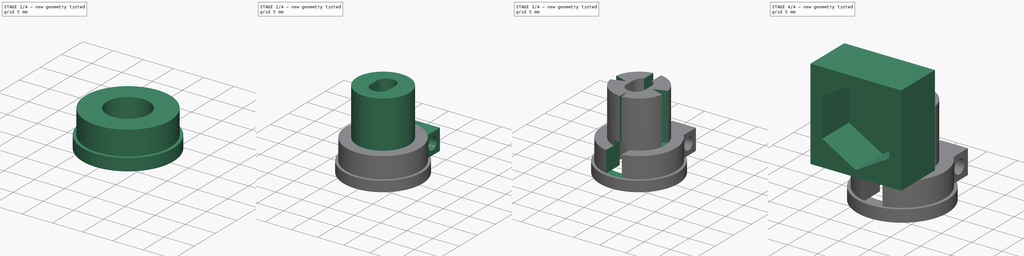
[diagram: build sequence overview — one tinted view per stage of 4, left to right]
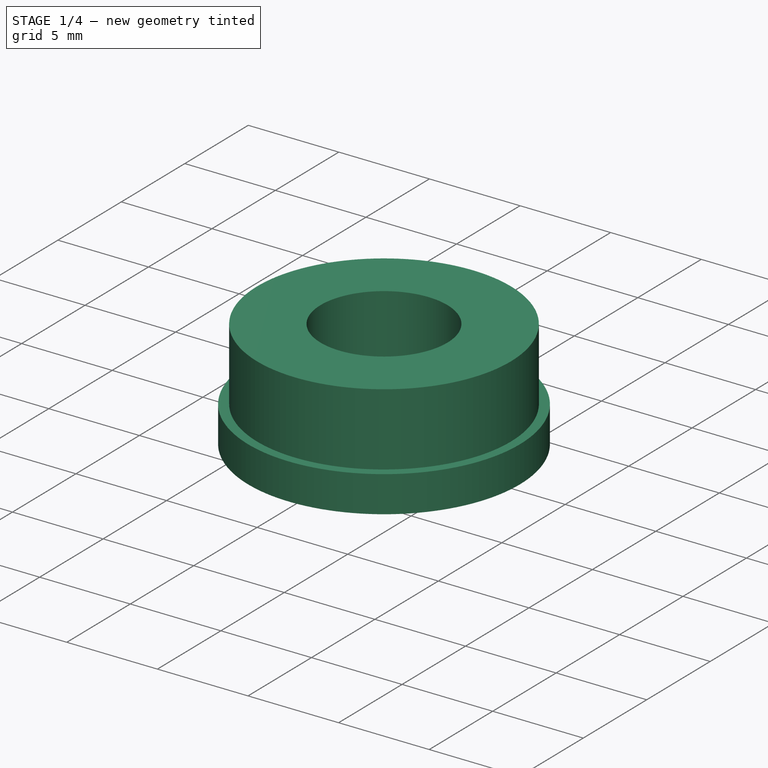
[diagram: stage 1 of 4 — iso view after this stage's code; geometry added in this stage tinted green]
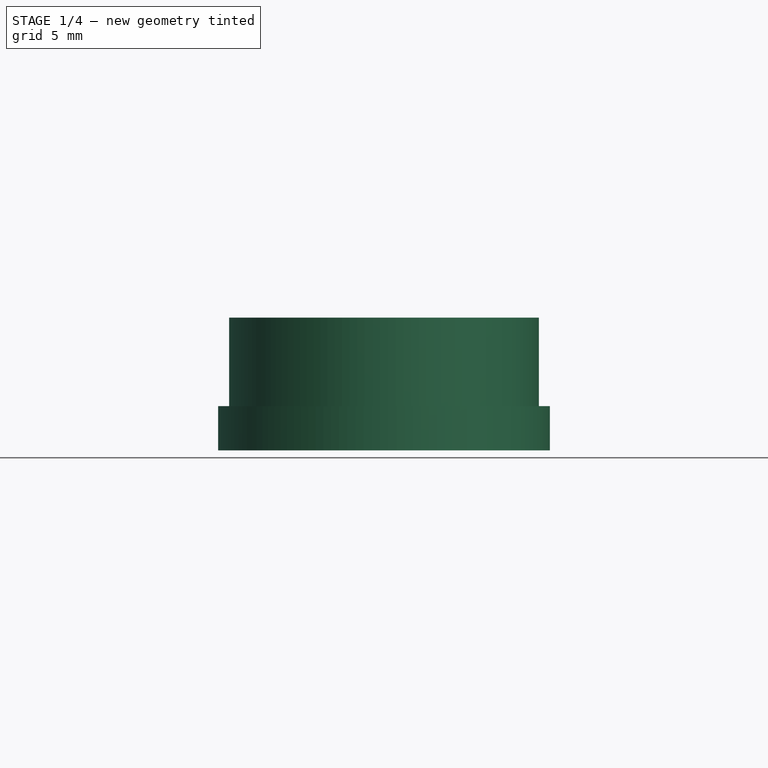
[diagram: stage 1 of 4 — front view after this stage's code; geometry added in this stage tinted green]
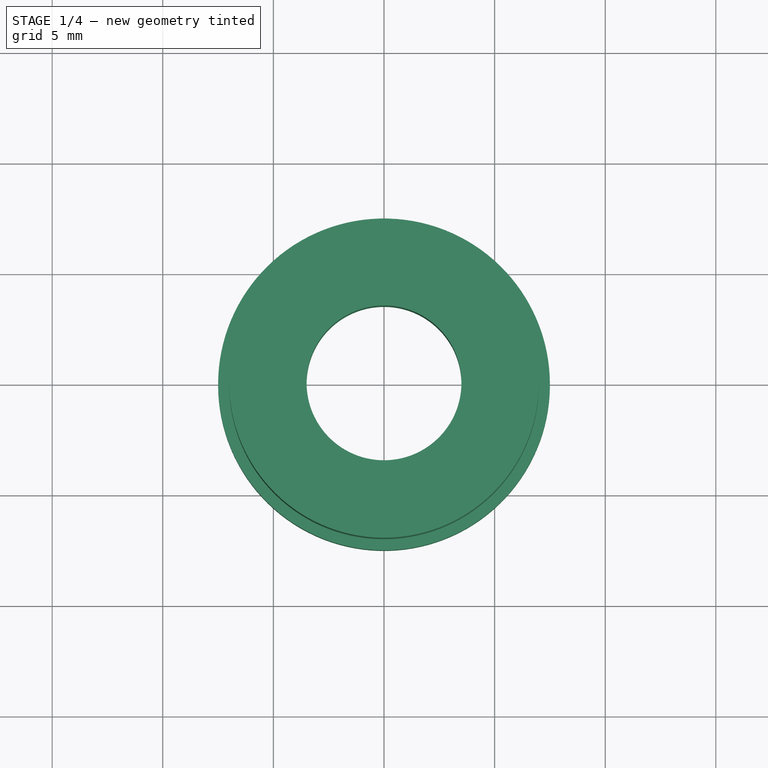
[diagram: stage 1 of 4 — top view after this stage's code; geometry added in this stage tinted green]
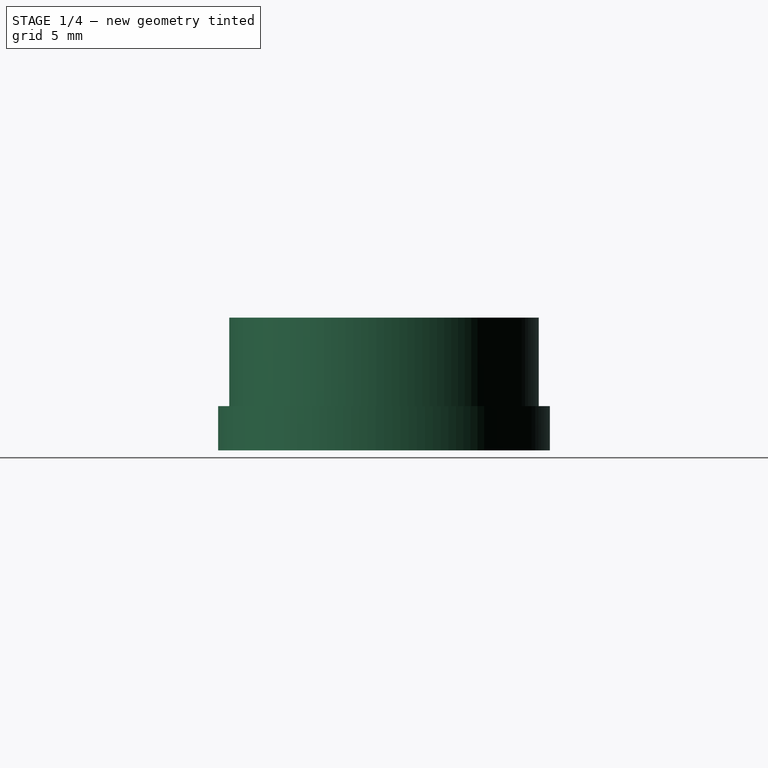
[diagram: stage 1 of 4 — right view after this stage's code; geometry added in this stage tinted green]
FCSTD DOCUMENT  (FreeCAD 0.19R24344 (Git))
Label: Case_Cable-Camera
License: All rights reserved
LicenseURL: http://en.wikipedia.org/wiki/All_rights_reserved
objects: Sketcher::SketchObject×10, PartDesign::Pad×5, PartDesign::Pocket×5, PartDesign::Body×1
note: 31 computed .brp shape members not serialized (recipe doc carries the construction recipe); baked Part::Feature solids carry a one-line shape summary decoded from their .brp

FEATURE [Sketcher::SketchObject] Sketch
  FullyConstrained = false
  MapMode = 5
  Support = -> [XY_Plane]
  sketch-geometry (2):
    g0: Circle CenterX=0 CenterY=0 CenterZ=0 NormalX=0 NormalY=0 NormalZ=1 AngleXU=0 Radius=7.5
    g1: Circle CenterX=0 CenterY=0 CenterZ=0 NormalX=0 NormalY=0 NormalZ=1 AngleXU=0 Radius=5.5
  constraints (4):
    c: Coincident(g0,g-1)
    c: Radius(g0) = 7.5
    c: Coincident(g1,g0)
    c: Radius(g1) = 5.5
FEATURE [PartDesign::Pad] Pad
  AllowMultiFace = false
  Direction = (1,1,1)
  Length = 2
  Length2 = 100
  Profile = -> Sketch
  Type = 0
FEATURE [Sketcher::SketchObject] Sketch001
  FullyConstrained = false
  MapMode = 5
  Placement = pos=(0,0,2) rot=(0,0,1;0rad)
  Support = -> [Pad]
  sketch-geometry (2):
    g0: Circle CenterX=0 CenterY=0 CenterZ=0 NormalX=0 NormalY=0 NormalZ=1 AngleXU=0 Radius=7
    g1: Circle CenterX=0 CenterY=0 CenterZ=0 NormalX=0 NormalY=0 NormalZ=1 AngleXU=0 Radius=3.5
  constraints (4):
    c: Coincident(g0,g-1)
    c: Radius(g0) = 7
    c: Radius(g1) = 3.5
    c: Coincident(g1,g0)
FEATURE [PartDesign::Pad] Pad001
  AllowMultiFace = false
  BaseFeature = -> Pad
  Direction = (1,1,1)
  Length = 4
  Length2 = 100
  Profile = -> Sketch001
  Type = 0
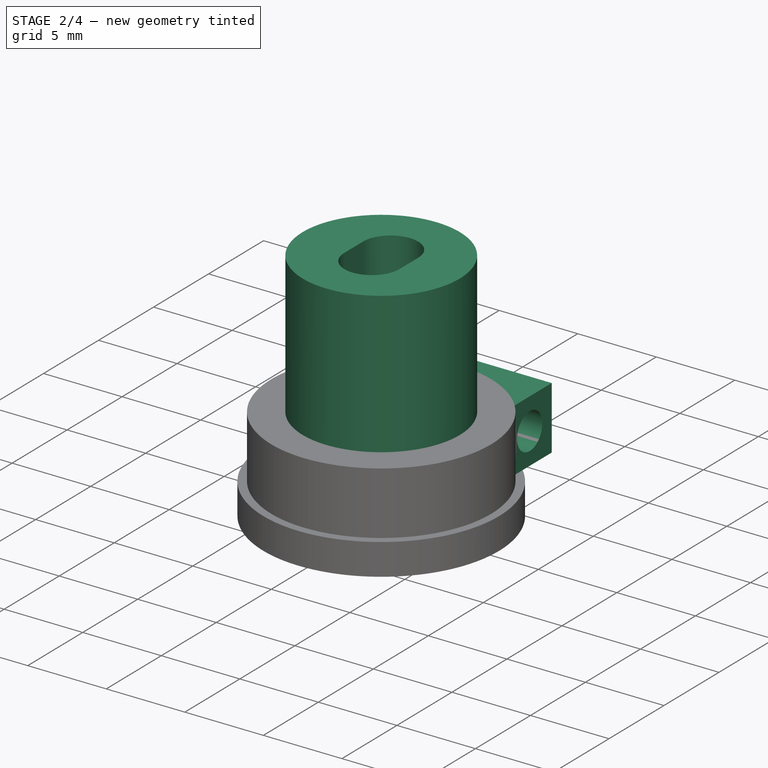
[diagram: stage 2 of 4 — iso view after this stage's code; geometry added in this stage tinted green]
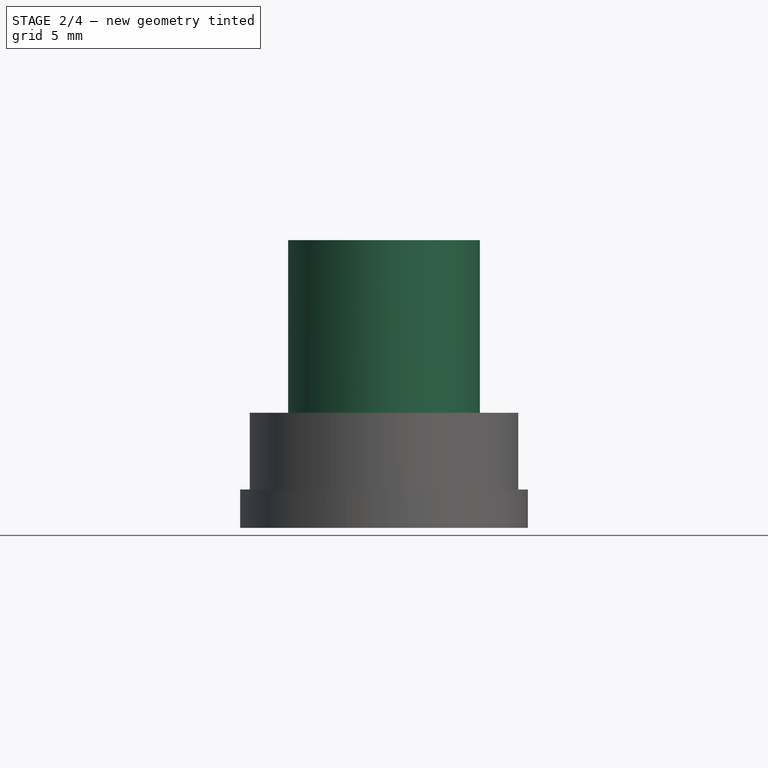
[diagram: stage 2 of 4 — front view after this stage's code; geometry added in this stage tinted green]
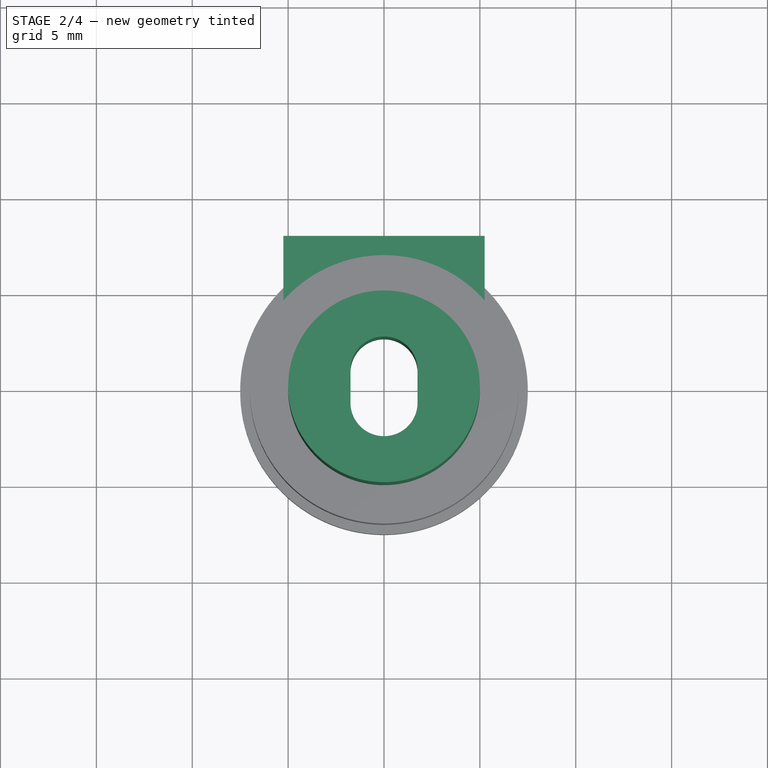
[diagram: stage 2 of 4 — top view after this stage's code; geometry added in this stage tinted green]
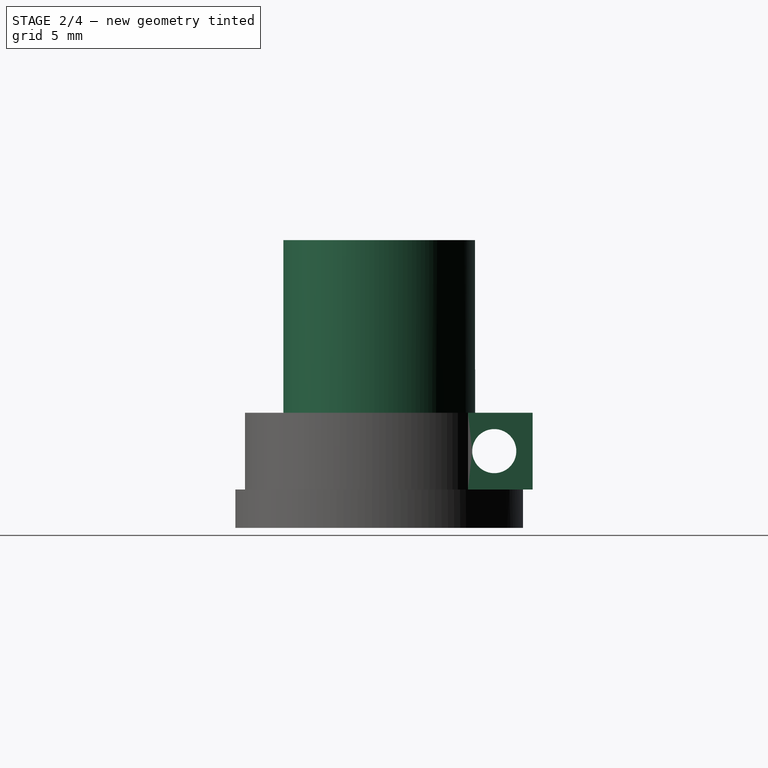
[diagram: stage 2 of 4 — right view after this stage's code; geometry added in this stage tinted green]
FEATURE [Sketcher::SketchObject] Sketch002
  FullyConstrained = false
  MapMode = 5
  Placement = pos=(0,0,6) rot=(0,0,1;0rad)
  Support = -> [Pad001]
  sketch-geometry (7):
    g0: ArcOfCircle CenterX=0 CenterY=0.85 CenterZ=0 NormalX=0 NormalY=0 NormalZ=1 AngleXU=0 Radius=1.75 StartAngle=2e-16 EndAngle=3.14159
    g1: ArcOfCircle CenterX=0 CenterY=-0.85 CenterZ=0 NormalX=0 NormalY=0 NormalZ=1 AngleXU=0 Radius=1.75 StartAngle=3.14159 EndAngle=6.28319
    g2: LineSegment StartX=-1.75 StartY=0.85 StartZ=0 EndX=-1.75 EndY=-0.85 EndZ=0
    g3: LineSegment StartX=1.75 StartY=0.85 StartZ=0 EndX=1.75 EndY=-0.85 EndZ=0
    g4: LineSegment StartX=-1 StartY=2.6 StartZ=0 EndX=1 EndY=2.6 EndZ=0
    g5: LineSegment StartX=-1 StartY=-2.6 StartZ=0 EndX=1 EndY=-2.6 EndZ=0
    g6: Circle CenterX=0 CenterY=0 CenterZ=0 NormalX=0 NormalY=0 NormalZ=1 AngleXU=0 Radius=5
  constraints (17):
    c: Tangent(g0,g3) = 1.5708
    c: Tangent(g0,g2) = -1.5708
    c: Tangent(g2,g1) = -1.5708
    c: Tangent(g3,g1) = 1.5708
    c: Vertical(g2)
    c: DistanceX(g0,g0) = 3.5
    c: Symmetric(g0,g1,g-1)
    c: Tangent(g4,g0)
    c: Tangent(g5,g1)
    c: DistanceY(g5,g4) = 5.2
    c: PointOnObject(g0,g-2)
    c: DistanceX(g4,g4) = 2
    c: DistanceX(g5,g5) = 2
    c: Symmetric(g4,g4,g-2)
    c: Symmetric(g5,g5,g-2)
    c: Coincident(g6,g-1)
    c: Radius(g6) = 5
FEATURE [PartDesign::Pad] Pad002
  AllowMultiFace = false
  BaseFeature = -> Pad001
  Direction = (1,1,1)
  Length = 9
  Length2 = 100
  Profile = -> Sketch002
  Type = 0
FEATURE [Sketcher::SketchObject] Sketch003
  FullyConstrained = false
  MapMode = 5
  Placement = pos=(0,0,2) rot=(0,0,1;0rad)
  Support = -> [Pad002]
  sketch-geometry (4):
    g0: LineSegment StartX=-5.25 StartY=8 StartZ=0 EndX=5.25 EndY=8 EndZ=0
    g1: LineSegment StartX=5.25 StartY=8 StartZ=0 EndX=5.25 EndY=4 EndZ=0
    g2: LineSegment StartX=5.25 StartY=4 StartZ=0 EndX=-5.25 EndY=4 EndZ=0
    g3: LineSegment StartX=-5.25 StartY=4 StartZ=0 EndX=-5.25 EndY=8 EndZ=0
  constraints (11):
    c: Coincident(g0,g1)
    c: Coincident(g1,g2)
    c: Coincident(g2,g3)
    c: Coincident(g3,g0)
    c: Horizontal(g2)
    c: Vertical(g1)
    c: Vertical(g3)
    c: Symmetric(g0,g0,g-2)
    c: DistanceY(g-1,g0) = 8
    c: Distance(g3) = 4
    c: Distance(g0) = 10.5
FEATURE [PartDesign::Pad] Pad003  label="ScrewBlock"
  AllowMultiFace = false
  BaseFeature = -> Pad002
  Direction = (1,1,1)
  Length = 4
  Length2 = 100
  Profile = -> Sketch003
  Type = 0
FEATURE [Sketcher::SketchObject] Sketch004
  ExternalGeometry = -> [Pad003]
  FullyConstrained = false
  MapMode = 5
  Placement = pos=(-5.25,0,0) rot=(0.57735,-0.57735,-0.57735;2.0944rad)
  Support = -> [Pad003]
  sketch-geometry (1):
    g0: Circle CenterX=-6 CenterY=4 CenterZ=0 NormalX=0 NormalY=0 NormalZ=1 AngleXU=0 Radius=1.15
  constraints (3):
    c: DistanceY(g0,g-3) = 2
    c: DistanceX(g-3,g0) = 2
    c: Radius(g0) = 1.15
FEATURE [PartDesign::Pocket] Pocket  label="ScrewHole"
  AllowMultiFace = false
  BaseFeature = -> Pad003
  Length = 5
  Length2 = 100
  Profile = -> Sketch004
  Type = 1
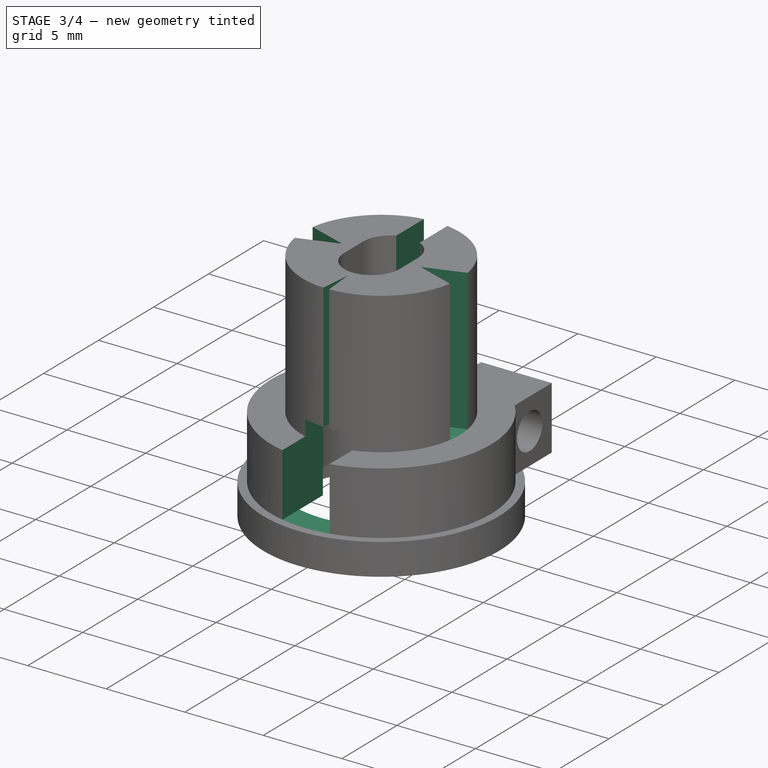
[diagram: stage 3 of 4 — iso view after this stage's code; geometry added in this stage tinted green]
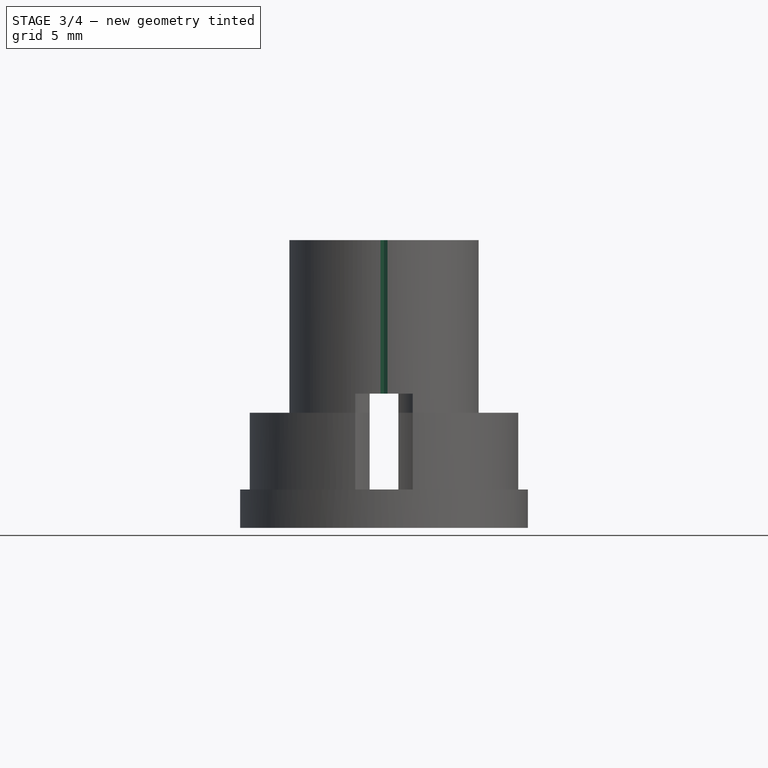
[diagram: stage 3 of 4 — front view after this stage's code; geometry added in this stage tinted green]
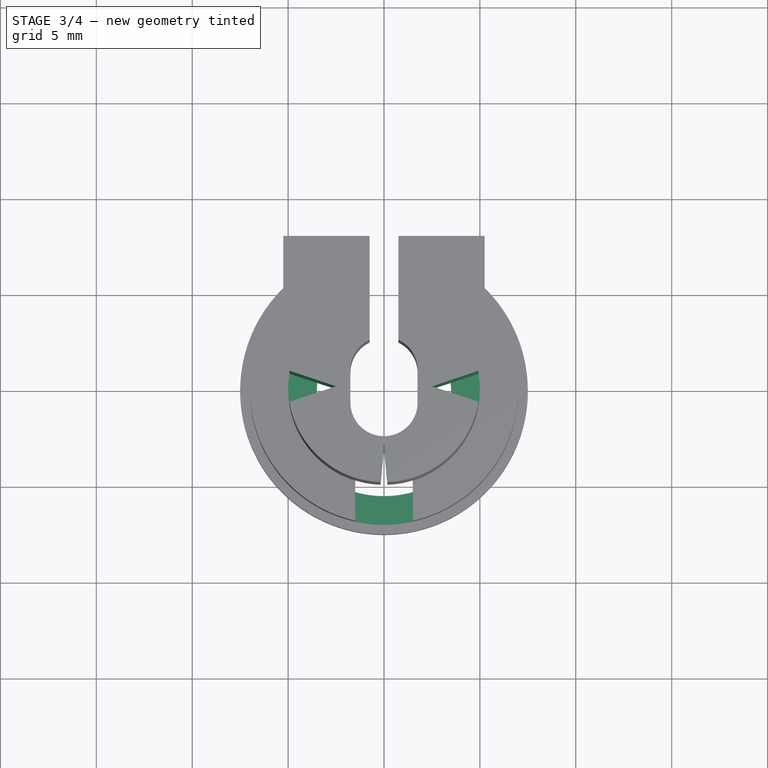
[diagram: stage 3 of 4 — top view after this stage's code; geometry added in this stage tinted green]
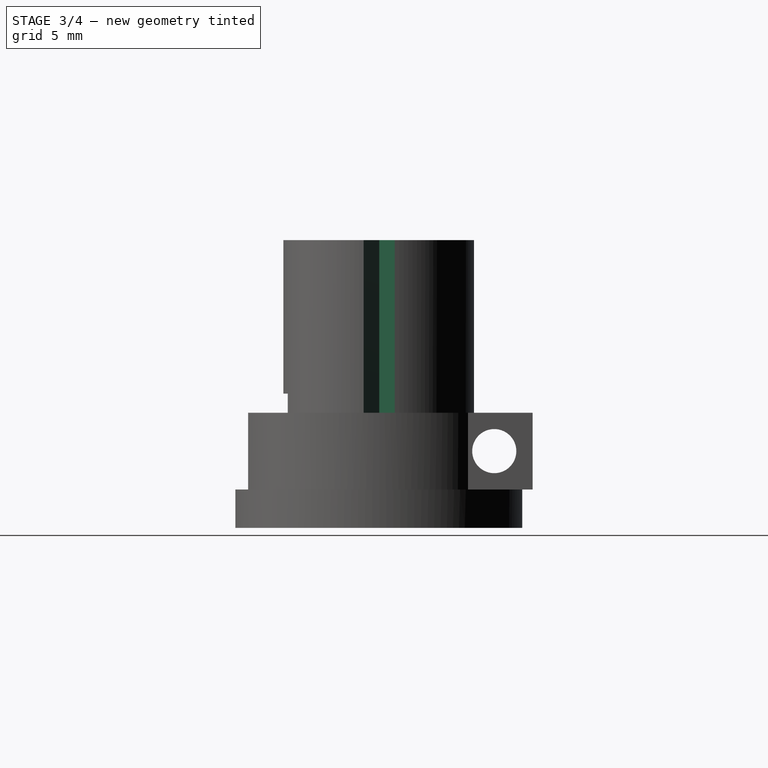
[diagram: stage 3 of 4 — right view after this stage's code; geometry added in this stage tinted green]
FEATURE [Sketcher::SketchObject] Sketch005
  ExternalGeometry = -> [Pocket]
  FullyConstrained = false
  MapMode = 5
  Placement = pos=(0,0,15) rot=(0,0,1;0rad)
  Support = -> [Pocket]
  sketch-geometry (13):
    g0: LineSegment StartX=0.5 StartY=8.5 StartZ=0 EndX=1e-16 EndY=3 EndZ=0
    g1: LineSegment StartX=1e-16 StartY=3 StartZ=0 EndX=-0.5 EndY=8.5 EndZ=0
    g2: LineSegment StartX=-0.5 StartY=8.5 StartZ=0 EndX=-8.5 EndY=2 EndZ=0
    g3: LineSegment StartX=-8.5 StartY=2 StartZ=0 EndX=-2.5 EndY=0 EndZ=0
    g4: LineSegment StartX=-2.5 StartY=0 StartZ=0 EndX=-8.5 EndY=-2 EndZ=0
    g5: LineSegment StartX=-8.5 StartY=-2 StartZ=0 EndX=-0.5 EndY=-8.5 EndZ=0
    g6: LineSegment StartX=-0.5 StartY=-8.5 StartZ=0 EndX=-1e-16 EndY=-3 EndZ=0
    g7: LineSegment StartX=-1e-16 StartY=-3 StartZ=0 EndX=0.5 EndY=-8.5 EndZ=0
    g8: LineSegment StartX=0.5 StartY=-8.5 StartZ=0 EndX=8.5 EndY=-2 EndZ=0
    g9: LineSegment StartX=8.5 StartY=-2 StartZ=0 EndX=2.5 EndY=0 EndZ=0
    g10: LineSegment StartX=2.5 StartY=0 StartZ=0 EndX=8.5 EndY=2 EndZ=0
    g11: LineSegment StartX=8.5 StartY=2 StartZ=0 EndX=0.5 EndY=8.5 EndZ=0
    g12: Circle CenterX=0 CenterY=0 CenterZ=0 NormalX=0 NormalY=0 NormalZ=1 AngleXU=0 Radius=9
  constraints (30):
    c: PointOnObject(g0,g-2)
    c: Coincident(g0,g1)
    c: Coincident(g1,g2)
    c: Coincident(g2,g3)
    c: PointOnObject(g3,g-1)
    c: Coincident(g3,g4)
    c: Coincident(g4,g5)
    c: Coincident(g5,g6)
    c: Coincident(g6,g7)
    c: Coincident(g7,g8)
    c: Coincident(g8,g9)
    c: Coincident(g9,g10)
    c: Coincident(g10,g11)
    c: Coincident(g11,g0)
    c: Symmetric(g9,g3,g-2)
    c: Symmetric(g0,g6,g-1)
    c: Symmetric(g0,g7,g-1)
    c: Symmetric(g1,g5,g-1)
    c: Symmetric(g2,g10,g-2)
    c: Symmetric(g8,g4,g-2)
    c: Symmetric(g4,g2,g-1)
    c: Symmetric(g5,g7,g-2)
    c: DistanceY(g-1,g0) = 3
    c: Coincident(g12,g-1)
    c: Radius(g12) = 9
    c: DistanceY(g5,g-1) = 8.5
    c: DistanceX(g4,g-1) = 8.5
    c: DistanceX(g5,g-1) = 0.5
    c: DistanceY(g4,g-1) = 2
    c: DistanceX(g-1,g9) = 2.5
FEATURE [PartDesign::Pocket] Pocket001
  AllowMultiFace = false
  BaseFeature = -> Pocket
  Length = 9
  Length2 = 100
  Profile = -> Sketch005
  Type = 0
FEATURE [Sketcher::SketchObject] Sketch006
  FullyConstrained = false
  MapMode = 5
  Placement = pos=(0,0,0) rot=(1,0,0;3.14159rad)
  Support = -> [Pocket001]
  sketch-geometry (4):
    g0: LineSegment StartX=-0.75 StartY=0 StartZ=0 EndX=0.75 EndY=0 EndZ=0
    g1: LineSegment StartX=0.75 StartY=0 StartZ=0 EndX=0.75 EndY=-9 EndZ=0
    g2: LineSegment StartX=0.75 StartY=-9 StartZ=0 EndX=-0.75 EndY=-9 EndZ=0
    g3: LineSegment StartX=-0.75 StartY=-9 StartZ=0 EndX=-0.75 EndY=0 EndZ=0
  constraints (11):
    c: Coincident(g0,g1)
    c: Coincident(g1,g2)
    c: Coincident(g2,g3)
    c: Coincident(g3,g0)
    c: Horizontal(g2)
    c: Vertical(g1)
    c: Vertical(g3)
    c: PointOnObject(g0,g-1)
    c: Symmetric(g0,g0,g-2)
    c: Distance(g1) = 9
    c: Distance(g2) = 1.5
FEATURE [PartDesign::Pocket] Pocket002
  AllowMultiFace = false
  BaseFeature = -> Pocket001
  Length = 5
  Length2 = 100
  Profile = -> Sketch006
  Type = 1
FEATURE [Sketcher::SketchObject] Sketch007
  FullyConstrained = false
  MapMode = 5
  Placement = pos=(0,0,2) rot=(1,0,0;3.14159rad)
  Support = -> [Pocket002]
  sketch-geometry (4):
    g0: LineSegment StartX=-1.5 StartY=0 StartZ=0 EndX=1.5 EndY=0 EndZ=0
    g1: LineSegment StartX=1.5 StartY=0 StartZ=0 EndX=1.5 EndY=9 EndZ=0
    g2: LineSegment StartX=1.5 StartY=9 StartZ=0 EndX=-1.5 EndY=9 EndZ=0
    g3: LineSegment StartX=-1.5 StartY=9 StartZ=0 EndX=-1.5 EndY=0 EndZ=0
  constraints (11):
    c: Coincident(g0,g1)
    c: Coincident(g1,g2)
    c: Coincident(g2,g3)
    c: Coincident(g3,g0)
    c: Horizontal(g2)
    c: Vertical(g1)
    c: Vertical(g3)
    c: PointOnObject(g0,g-1)
    c: Symmetric(g0,g0,g-2)
    c: Distance(g3) = 9
    c: Distance(g0) = 3
FEATURE [PartDesign::Pocket] Pocket003
  AllowMultiFace = false
  BaseFeature = -> Pocket002
  Length = 5
  Length2 = 100
  Profile = -> Sketch007
  Type = 0
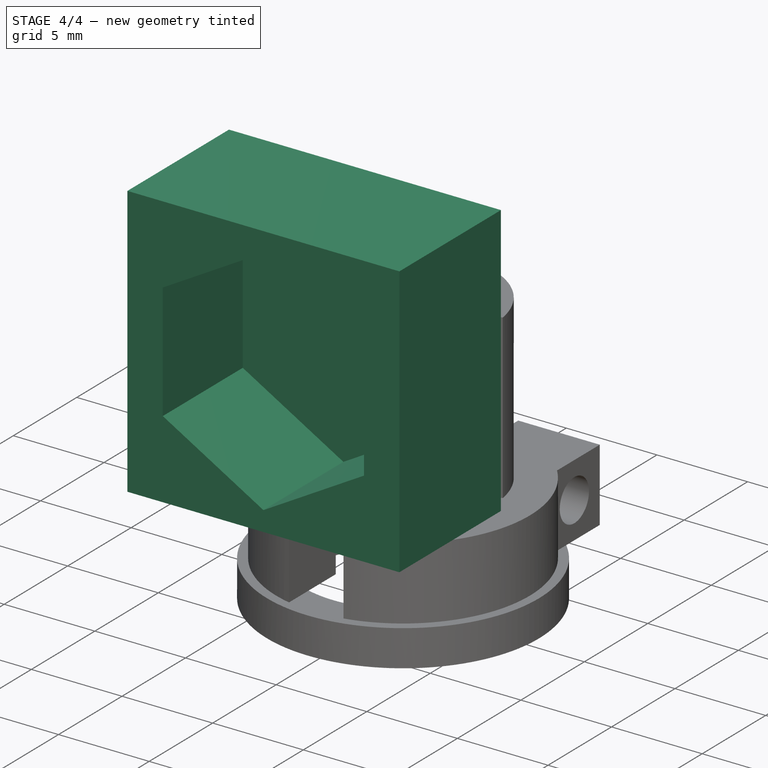
[diagram: stage 4 of 4 — iso view after this stage's code; geometry added in this stage tinted green]
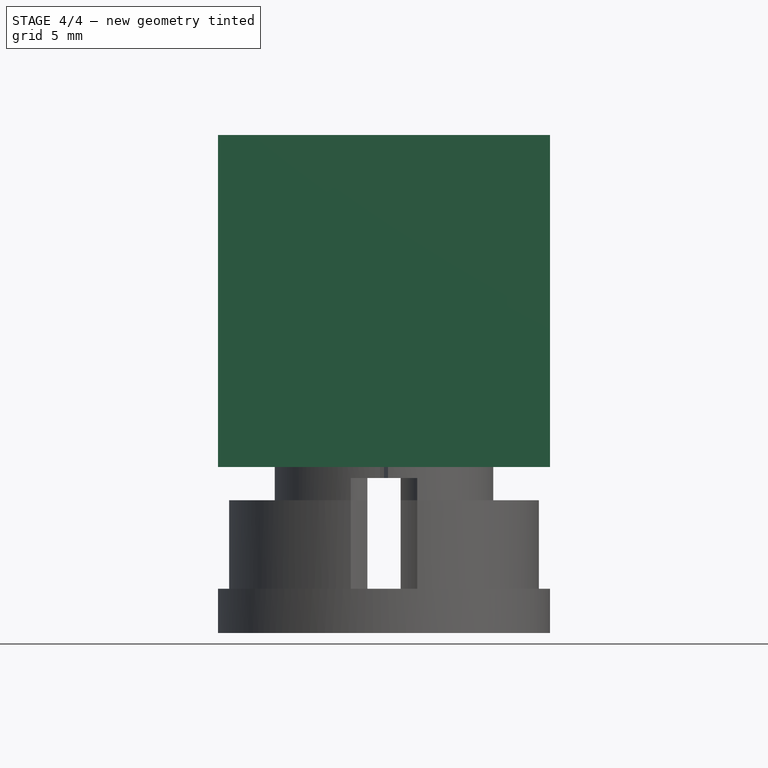
[diagram: stage 4 of 4 — front view after this stage's code; geometry added in this stage tinted green]
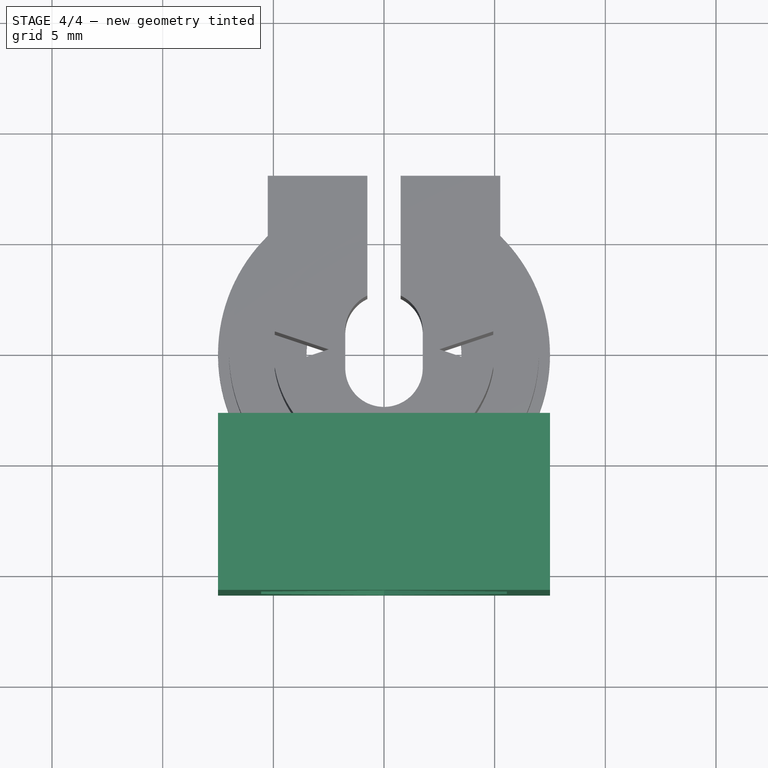
[diagram: stage 4 of 4 — top view after this stage's code; geometry added in this stage tinted green]
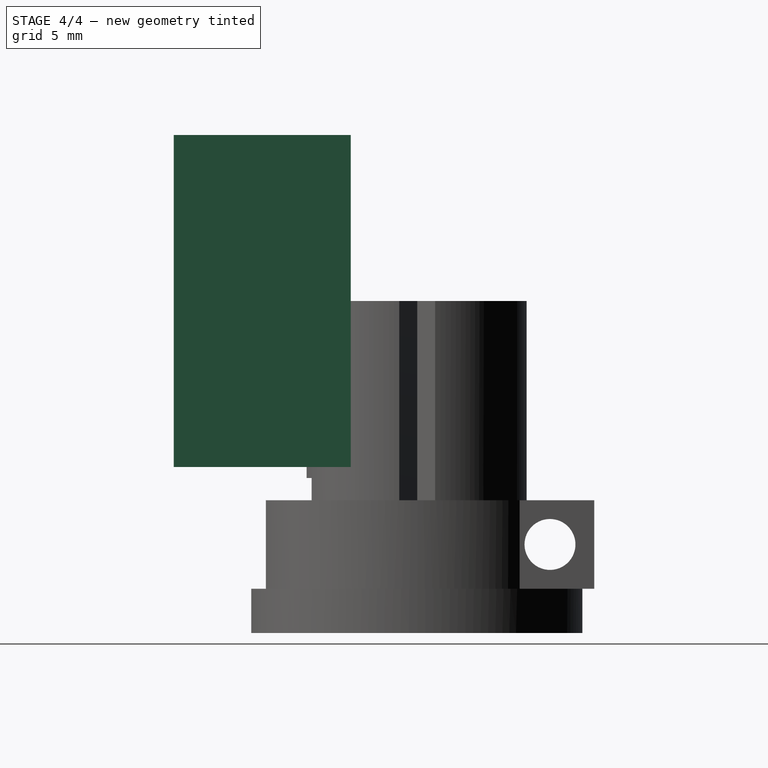
[diagram: stage 4 of 4 — right view after this stage's code; geometry added in this stage tinted green]
FEATURE [Sketcher::SketchObject] Sketch008
  FullyConstrained = false
  MapMode = 5
  Placement = pos=(0,0,15) rot=(0,0,1;0rad)
  Support = -> [Pocket003]
  sketch-geometry (4):
    g0: LineSegment StartX=-7.5 StartY=-3 StartZ=0 EndX=7.5 EndY=-3 EndZ=0
    g1: LineSegment StartX=7.5 StartY=-3 StartZ=0 EndX=7.5 EndY=-11 EndZ=0
    g2: LineSegment StartX=7.5 StartY=-11 StartZ=0 EndX=-7.5 EndY=-11 EndZ=0
    g3: LineSegment StartX=-7.5 StartY=-11 StartZ=0 EndX=-7.5 EndY=-3 EndZ=0
  constraints (11):
    c: Coincident(g0,g1)
    c: Coincident(g1,g2)
    c: Coincident(g2,g3)
    c: Coincident(g3,g0)
    c: Horizontal(g2)
    c: Vertical(g1)
    c: Vertical(g3)
    c: Symmetric(g0,g0,g-2)
    c: Distance(g0) = 15
    c: Distance(g3) = 8
    c: DistanceY(g0,g-1) = 3
FEATURE [PartDesign::Pad] Pad004
  AllowMultiFace = false
  BaseFeature = -> Pocket003
  Direction = (1,1,1)
  Length = 15
  Length2 = 100
  Midplane = true
  Profile = -> Sketch008
  Type = 0
FEATURE [Sketcher::SketchObject] Sketch009
  ExternalGeometry = -> [Pad004]
  FullyConstrained = false
  MapMode = 5
  Placement = pos=(0,-11,0) rot=(1,0,0;1.5708rad)
  Support = -> [Pad004]
  sketch-geometry (10):
    g0: LineSegment StartX=0 StartY=21.4086 StartZ=0 EndX=-5.55 EndY=18.2043 EndZ=0
    g1: LineSegment StartX=-5.55 StartY=18.2043 StartZ=0 EndX=-5.55 EndY=11.7957 EndZ=0
    g2: LineSegment StartX=-5.55 StartY=11.7957 StartZ=0 EndX=0 EndY=8.59141 EndZ=0
    g3: LineSegment StartX=0 StartY=8.59141 StartZ=0 EndX=5.55 EndY=11.7957 EndZ=0
    g4: LineSegment StartX=5.55 StartY=11.7957 StartZ=0 EndX=5.55 EndY=18.2043 EndZ=0
    g5: LineSegment StartX=5.55 StartY=18.2043 StartZ=0 EndX=0 EndY=21.4086 EndZ=0
    g6: Circle CenterX=-1e-16 CenterY=15 CenterZ=0 NormalX=0 NormalY=0 NormalZ=1 AngleXU=0 Radius=6.40859
    g7: LineSegment StartX=-7.5 StartY=22.5 StartZ=0 EndX=7.5 EndY=7.5 EndZ=0
    g8: LineSegment StartX=-7.5 StartY=7.5 StartZ=0 EndX=7.5 EndY=22.5 EndZ=0
    g9: GeomPoint X=-1e-16 Y=15 Z=0
  constraints (17):
    c: Coincident(g0,g1)
    c: Coincident(g1,g2)
    c: Coincident(g2,g3)
    c: Coincident(g3,g4)
    c: Coincident(g4,g5)
    c: Coincident(g5,g0)
    c: Equal(g0, g1-g5) x5
    c: PointOnObject(g0,g6)
    c: PointOnObject(g1,g6)
    c: PointOnObject(g2,g6)
    c: PointOnObject(g3,g6)
    c: PointOnObject(g4,g6)
    c: PointOnObject(g5,g6)
    c: Symmetric(g0,g4,g-2)
    c: DistanceX(g0,g4) = 11.1
    c: PointOnObject(g9,g8)
    c: Coincident(g6,g9)
FEATURE [PartDesign::Pocket] Pocket004
  AllowMultiFace = false
  BaseFeature = -> Pad004
  Length = 6.3
  Length2 = 100
  Profile = -> Sketch009
  Type = 0
FEATURE [PartDesign::Body] Body  label="Case_Cable-Camera"
  Group = -> [Sketch,Pad,Sketch001,Pad001,Sketch002,Pad002,Sketch003,Pad003,Pocket,Sketch005,Pocket001,Sketch006,Pocket002,Sketch007,Pocket003,Sketch008,Pad004,Sketch009,Pocket004]
  Origin = -> Origin
  Tip = -> Pocket004
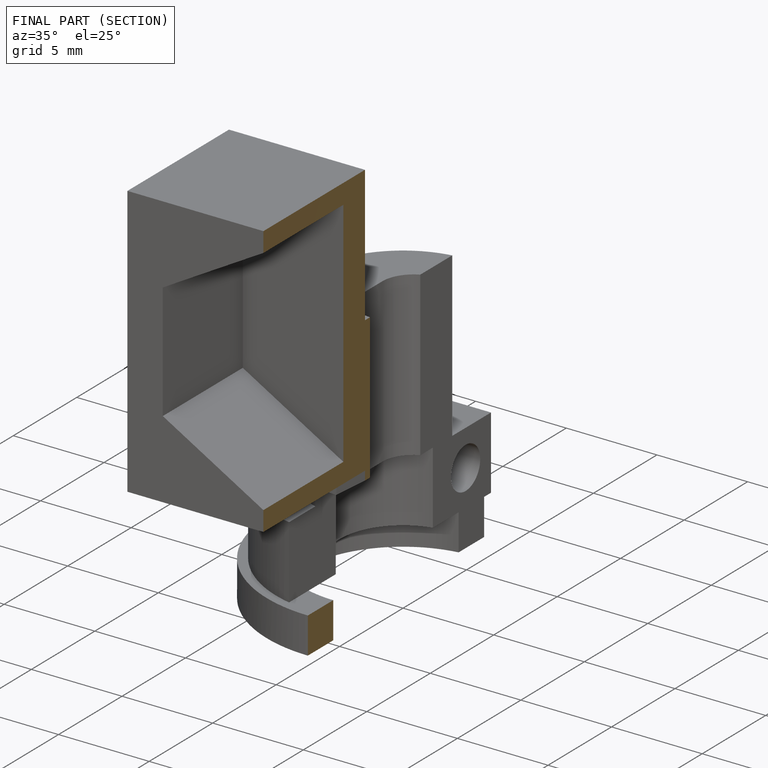
[diagram: finished part — half-section view (interior)]
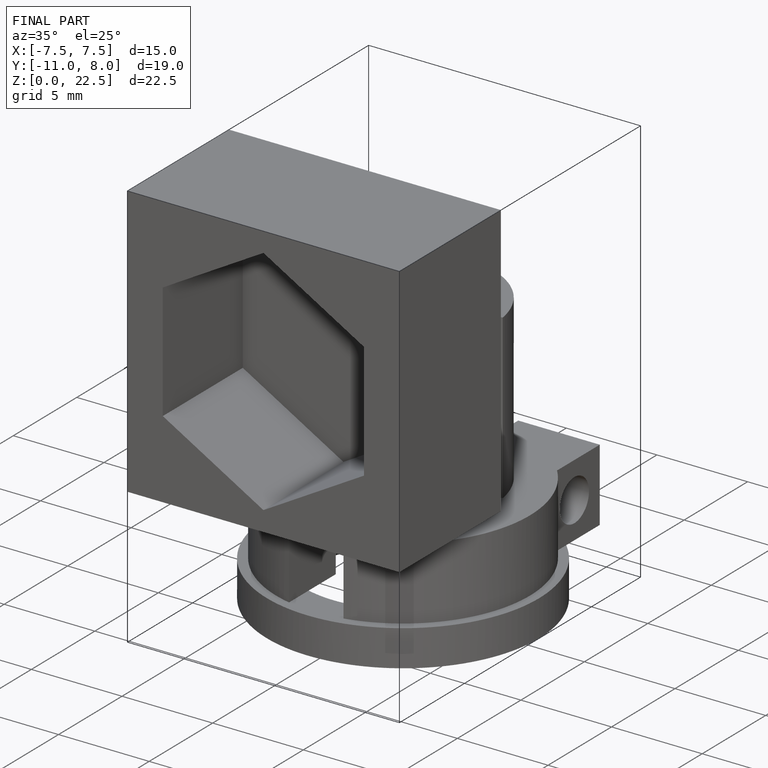
[diagram: finished part — iso view with bounding-box wireframe]
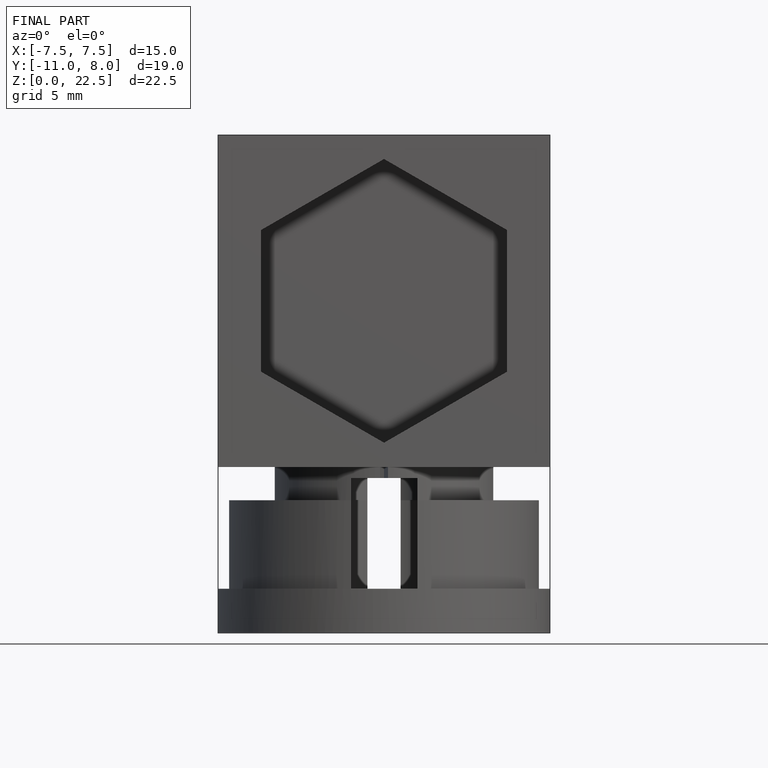
[diagram: finished part — front view with bounding-box wireframe]
